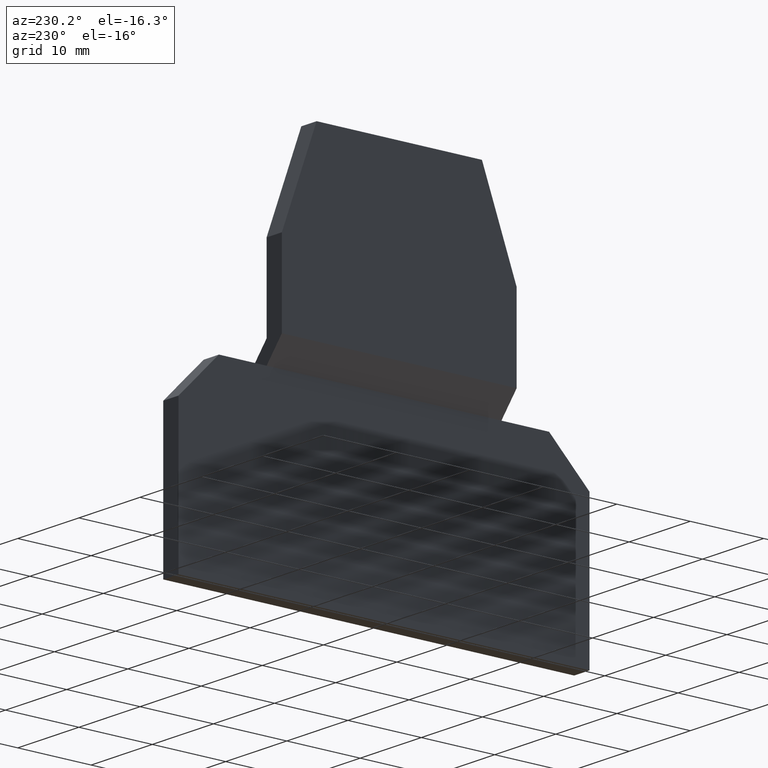
[diagram: clean part render]
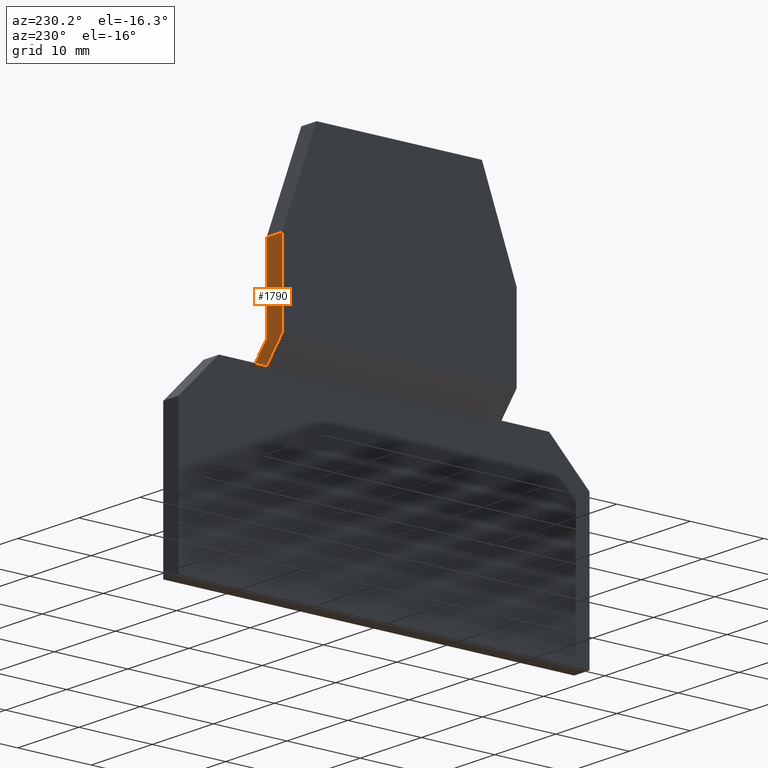
[diagram: same view with one face highlighted and labeled with its STEP entity id]
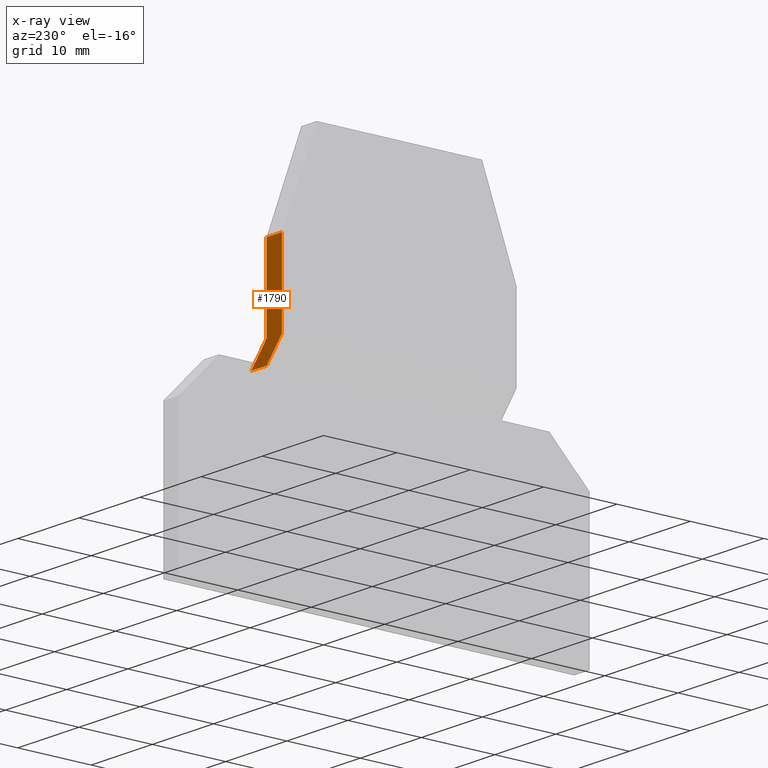
[diagram: x-ray of the same camera — body ghosted, the highlighted face saturated]
A machine part, auxiliary view. The second image highlights one B-rep face of the part: STEP entity #1790.
The next image is the same camera in x-ray: the body ghosted, the highlighted face saturated — about 0% of this face is hidden behind the body in this view.
In plain terms, the highlighted planar face has unit normal (-0, 1, 0).
Its self-contained STEP definition (entity closure, byte-faithful):
#570=CARTESIAN_POINT('',(6.66153799999999,34.6101529814855,
8.88178419700125E-16));
#580=VERTEX_POINT('',#570);
#750=CARTESIAN_POINT('',(6.66153799999999,31.630769,-2.5));
#760=VERTEX_POINT('',#750);
#790=CARTESIAN_POINT('',(6.66153799999999,0.,-29.0413666017537));
#800=DIRECTION('',(0.,-0.766044443118978,-0.642787609686539));
#810=VECTOR('',#800,1.);
#820=LINE('',#790,#810);
#830=EDGE_CURVE('',#580,#760,#820,.T.);
#1040=CARTESIAN_POINT('',(6.66153799999999,31.630769,-5.));
#1050=VERTEX_POINT('',#1040);
#1220=CARTESIAN_POINT('',(6.66153799999999,34.6101529814855,-2.5));
#1230=VERTEX_POINT('',#1220);
#1260=CARTESIAN_POINT('',(6.66153799999999,0.,-31.5413666017537));
#1270=DIRECTION('',(0.,0.766044443118978,0.642787609686539));
#1280=VECTOR('',#1270,1.);
#1290=LINE('',#1260,#1280);
#1300=EDGE_CURVE('',#1050,#1230,#1290,.T.);
#1420=CARTESIAN_POINT('',(6.66153799999999,34.6101529814855,-2.5));
#1430=DIRECTION('',(-1.,0.,0.));
#1440=DIRECTION('',(0.,-1.,0.));
#1450=AXIS2_PLACEMENT_3D('',#1420,#1430,#1440);
#1460=PLANE('',#1450);
#1470=CARTESIAN_POINT('',(6.66153799999999,45.6307690000006,0.));
#1480=DIRECTION('',(0.,0.,-1.));
#1490=VECTOR('',#1480,1.);
#1500=LINE('',#1470,#1490);
#1510=CARTESIAN_POINT('',(6.661538,45.6307690000006,8.88178419700125E-16
));
#1520=VERTEX_POINT('',#1510);
#1530=CARTESIAN_POINT('',(6.66153799999999,45.6307690000006,-2.5));
#1540=VERTEX_POINT('',#1530);
#1550=EDGE_CURVE('',#1520,#1540,#1500,.T.);
#1560=ORIENTED_EDGE('',*,*,#1550,.T.);
#1570=CARTESIAN_POINT('',(6.66153799999999,0.,8.88178419700125E-16));
#1580=DIRECTION('',(0.,-1.,0.));
#1590=VECTOR('',#1580,1.);
#1600=LINE('',#1570,#1590);
#1610=EDGE_CURVE('',#1520,#580,#1600,.T.);
#1620=ORIENTED_EDGE('',*,*,#1610,.F.);
#1630=ORIENTED_EDGE('',*,*,#830,.F.);
#1640=CARTESIAN_POINT('',(6.66153799999999,31.630769,0.));
#1650=DIRECTION('',(0.,0.,-1.));
#1660=VECTOR('',#1650,1.);
#1670=LINE('',#1640,#1660);
#1680=EDGE_CURVE('',#760,#1050,#1670,.T.);
#1690=ORIENTED_EDGE('',*,*,#1680,.F.);
#1700=ORIENTED_EDGE('',*,*,#1300,.F.);
#1710=CARTESIAN_POINT('',(6.66153799999999,0.,-2.5));
#1720=DIRECTION('',(0.,-1.,0.));
#1730=VECTOR('',#1720,1.);
#1740=LINE('',#1710,#1730);
#1750=EDGE_CURVE('',#1540,#1230,#1740,.T.);
#1760=ORIENTED_EDGE('',*,*,#1750,.T.);
#1770=EDGE_LOOP('',(#1760,#1700,#1690,#1630,#1620,#1560));
#1780=FACE_OUTER_BOUND('',#1770,.T.);
#1790=ADVANCED_FACE('',(#1780),#1460,.T.);